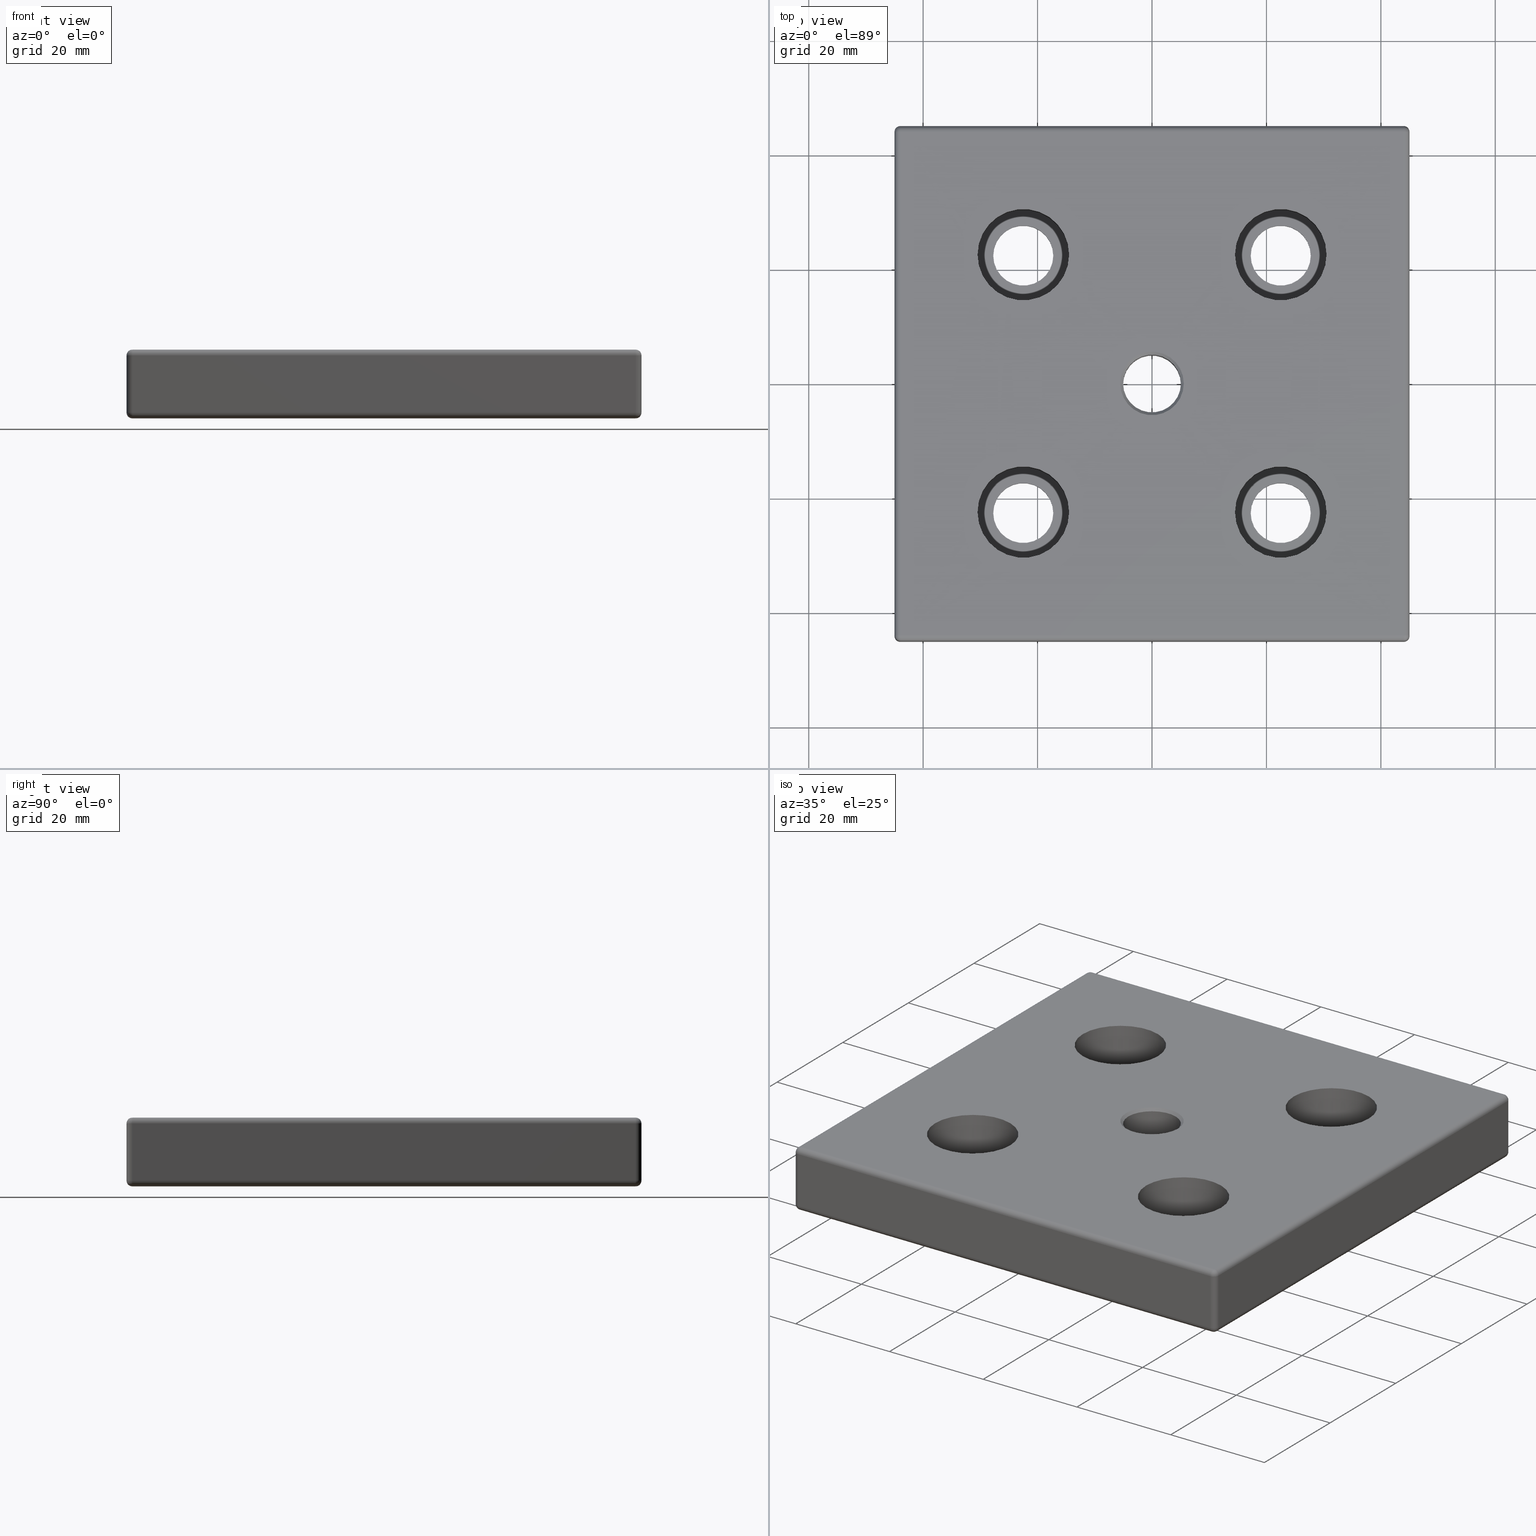
[diagram: canonical four-view strip — front | top / right | iso, engineering-drawing reading convention]
A machine part, canonical four-view strip (front | top / right | iso — engineering-drawing reading convention). The complete STEP part file that produces these views, byte-faithful:
ISO-10303-21;
HEADER;
/* Generated by software containing ST-Developer
 * from STEP Tools, Inc. (www.steptools.com) 
 */

FILE_DESCRIPTION(
/* description */ ('PIASTRA FISS. PIEDI M12 90X90'),
/* implementation_level */ '2;1');

FILE_NAME(
/* name */ 
'Q:\\Catalogo\\2_Accessori Dierre\\Per Download Web e catalogo cartace
o\\CATALOGO PIEDI E SOSTEGNI\\PAGINA 46\\DPSXX0001729.stp',
/* time_stamp */ '2018-11-05T17:49:38+01:00',
/* author */ ('fzagni'),
/* organization */ (''),
/* preprocessor_version */ 'ST-DEVELOPER v16.1',
/* originating_system */ 'Autodesk Inventor 2016',
/* authorisation */ '');

FILE_SCHEMA (('AUTOMOTIVE_DESIGN { 1 0 10303 214 3 1 1 }'));
ENDSEC;

DATA;
#10=MECHANICAL_DESIGN_GEOMETRIC_PRESENTATION_REPRESENTATION('',(#13),#1009);
#11=SHAPE_REPRESENTATION_RELATIONSHIP('SRR','None',#1018,#12);
#12=ADVANCED_BREP_SHAPE_REPRESENTATION('',(#14),#1008);
#13=STYLED_ITEM('',(#1027),#14);
#14=MANIFOLD_SOLID_BREP('Solido1',#569);
#15=SPHERICAL_SURFACE('',#608,0.999999999999996);
#16=SPHERICAL_SURFACE('',#612,0.999999999999996);
#17=SPHERICAL_SURFACE('',#616,0.999999999999996);
#18=SPHERICAL_SURFACE('',#620,0.999999999999996);
#19=SPHERICAL_SURFACE('',#624,1.);
#20=SPHERICAL_SURFACE('',#629,0.999999999999996);
#21=SPHERICAL_SURFACE('',#635,0.999999999999996);
#22=SPHERICAL_SURFACE('',#639,0.999999999999996);
#23=LINE('',#864,#47);
#24=LINE('',#866,#48);
#25=LINE('',#868,#49);
#26=LINE('',#869,#50);
#27=LINE('',#884,#51);
#28=LINE('',#886,#52);
#29=LINE('',#888,#53);
#30=LINE('',#889,#54);
#31=LINE('',#957,#55);
#32=LINE('',#965,#56);
#33=LINE('',#967,#57);
#34=LINE('',#968,#58);
#35=LINE('',#982,#59);
#36=LINE('',#984,#60);
#37=LINE('',#985,#61);
#38=LINE('',#987,#62);
#39=LINE('',#989,#63);
#40=LINE('',#991,#64);
#41=LINE('',#993,#65);
#42=LINE('',#994,#66);
#43=LINE('',#996,#67);
#44=LINE('',#998,#68);
#45=LINE('',#1000,#69);
#46=LINE('',#1001,#70);
#47=VECTOR('',#670,88.);
#48=VECTOR('',#671,88.);
#49=VECTOR('',#672,88.);
#50=VECTOR('',#673,88.);
#51=VECTOR('',#688,88.);
#52=VECTOR('',#689,88.);
#53=VECTOR('',#690,88.);
#54=VECTOR('',#691,88.);
#55=VECTOR('',#782,88.);
#56=VECTOR('',#793,88.);
#57=VECTOR('',#796,10.);
#58=VECTOR('',#797,10.);
#59=VECTOR('',#816,88.);
#60=VECTOR('',#819,10.);
#61=VECTOR('',#820,10.);
#62=VECTOR('',#823,88.);
#63=VECTOR('',#826,88.);
#64=VECTOR('',#829,88.);
#65=VECTOR('',#832,10.);
#66=VECTOR('',#833,10.);
#67=VECTOR('',#836,88.);
#68=VECTOR('',#839,88.);
#69=VECTOR('',#842,10.);
#70=VECTOR('',#843,10.);
#71=PLANE('',#576);
#72=PLANE('',#583);
#73=PLANE('',#588);
#74=PLANE('',#593);
#75=PLANE('',#598);
#76=PLANE('',#603);
#77=PLANE('',#652);
#78=PLANE('',#653);
#79=PLANE('',#654);
#80=PLANE('',#655);
#81=CYLINDRICAL_SURFACE('',#574,5.053);
#82=CYLINDRICAL_SURFACE('',#591,8.);
#83=CYLINDRICAL_SURFACE('',#592,5.25);
#84=CYLINDRICAL_SURFACE('',#596,8.);
#85=CYLINDRICAL_SURFACE('',#597,5.25);
#86=CYLINDRICAL_SURFACE('',#601,8.);
#87=CYLINDRICAL_SURFACE('',#602,5.25);
#88=CYLINDRICAL_SURFACE('',#606,8.);
#89=CYLINDRICAL_SURFACE('',#607,5.25);
#90=CYLINDRICAL_SURFACE('',#628,1.);
#91=CYLINDRICAL_SURFACE('',#633,1.);
#92=CYLINDRICAL_SURFACE('',#634,1.);
#93=CYLINDRICAL_SURFACE('',#643,1.);
#94=CYLINDRICAL_SURFACE('',#644,1.);
#95=CYLINDRICAL_SURFACE('',#645,1.);
#96=CYLINDRICAL_SURFACE('',#646,1.);
#97=CYLINDRICAL_SURFACE('',#647,1.);
#98=CYLINDRICAL_SURFACE('',#648,1.);
#99=CYLINDRICAL_SURFACE('',#649,1.);
#100=CYLINDRICAL_SURFACE('',#650,1.);
#101=CYLINDRICAL_SURFACE('',#651,1.);
#102=FACE_BOUND('',#169,.T.);
#103=FACE_BOUND('',#171,.T.);
#104=FACE_BOUND('',#173,.T.);
#105=FACE_BOUND('',#174,.T.);
#106=FACE_BOUND('',#175,.T.);
#107=FACE_BOUND('',#176,.T.);
#108=FACE_BOUND('',#177,.T.);
#109=FACE_BOUND('',#179,.T.);
#110=FACE_BOUND('',#181,.T.);
#111=FACE_BOUND('',#182,.T.);
#112=FACE_BOUND('',#183,.T.);
#113=FACE_BOUND('',#184,.T.);
#114=FACE_BOUND('',#185,.T.);
#115=FACE_BOUND('',#187,.T.);
#116=FACE_BOUND('',#189,.T.);
#117=FACE_BOUND('',#191,.T.);
#118=FACE_BOUND('',#193,.T.);
#119=FACE_BOUND('',#195,.T.);
#120=FACE_BOUND('',#197,.T.);
#121=FACE_BOUND('',#199,.T.);
#122=FACE_BOUND('',#201,.T.);
#123=FACE_BOUND('',#203,.T.);
#124=FACE_BOUND('',#205,.T.);
#125=FACE_BOUND('',#207,.T.);
#126=FACE_BOUND('',#209,.T.);
#127=FACE_OUTER_BOUND('',#168,.T.);
#128=FACE_OUTER_BOUND('',#170,.T.);
#129=FACE_OUTER_BOUND('',#172,.T.);
#130=FACE_OUTER_BOUND('',#178,.T.);
#131=FACE_OUTER_BOUND('',#180,.T.);
#132=FACE_OUTER_BOUND('',#186,.T.);
#133=FACE_OUTER_BOUND('',#188,.T.);
#134=FACE_OUTER_BOUND('',#190,.T.);
#135=FACE_OUTER_BOUND('',#192,.T.);
#136=FACE_OUTER_BOUND('',#194,.T.);
#137=FACE_OUTER_BOUND('',#196,.T.);
#138=FACE_OUTER_BOUND('',#198,.T.);
#139=FACE_OUTER_BOUND('',#200,.T.);
#140=FACE_OUTER_BOUND('',#202,.T.);
#141=FACE_OUTER_BOUND('',#204,.T.);
#142=FACE_OUTER_BOUND('',#206,.T.);
#143=FACE_OUTER_BOUND('',#208,.T.);
#144=FACE_OUTER_BOUND('',#210,.T.);
#145=FACE_OUTER_BOUND('',#211,.T.);
#146=FACE_OUTER_BOUND('',#212,.T.);
#147=FACE_OUTER_BOUND('',#213,.T.);
#148=FACE_OUTER_BOUND('',#214,.T.);
#149=FACE_OUTER_BOUND('',#215,.T.);
#150=FACE_OUTER_BOUND('',#216,.T.);
#151=FACE_OUTER_BOUND('',#217,.T.);
#152=FACE_OUTER_BOUND('',#218,.T.);
#153=FACE_OUTER_BOUND('',#219,.T.);
#154=FACE_OUTER_BOUND('',#220,.T.);
#155=FACE_OUTER_BOUND('',#221,.T.);
#156=FACE_OUTER_BOUND('',#222,.T.);
#157=FACE_OUTER_BOUND('',#223,.T.);
#158=FACE_OUTER_BOUND('',#224,.T.);
#159=FACE_OUTER_BOUND('',#225,.T.);
#160=FACE_OUTER_BOUND('',#226,.T.);
#161=FACE_OUTER_BOUND('',#227,.T.);
#162=FACE_OUTER_BOUND('',#228,.T.);
#163=FACE_OUTER_BOUND('',#229,.T.);
#164=FACE_OUTER_BOUND('',#230,.T.);
#165=FACE_OUTER_BOUND('',#231,.T.);
#166=FACE_OUTER_BOUND('',#232,.T.);
#167=FACE_OUTER_BOUND('',#233,.T.);
#168=EDGE_LOOP('',(#390));
#169=EDGE_LOOP('',(#391));
#170=EDGE_LOOP('',(#392));
#171=EDGE_LOOP('',(#393));
#172=EDGE_LOOP('',(#394,#395,#396,#397));
#173=EDGE_LOOP('',(#398));
#174=EDGE_LOOP('',(#399));
#175=EDGE_LOOP('',(#400));
#176=EDGE_LOOP('',(#401));
#177=EDGE_LOOP('',(#402));
#178=EDGE_LOOP('',(#403));
#179=EDGE_LOOP('',(#404));
#180=EDGE_LOOP('',(#405,#406,#407,#408));
#181=EDGE_LOOP('',(#409));
#182=EDGE_LOOP('',(#410));
#183=EDGE_LOOP('',(#411));
#184=EDGE_LOOP('',(#412));
#185=EDGE_LOOP('',(#413));
#186=EDGE_LOOP('',(#414));
#187=EDGE_LOOP('',(#415));
#188=EDGE_LOOP('',(#416));
#189=EDGE_LOOP('',(#417));
#190=EDGE_LOOP('',(#418));
#191=EDGE_LOOP('',(#419));
#192=EDGE_LOOP('',(#420));
#193=EDGE_LOOP('',(#421));
#194=EDGE_LOOP('',(#422));
#195=EDGE_LOOP('',(#423));
#196=EDGE_LOOP('',(#424));
#197=EDGE_LOOP('',(#425));
#198=EDGE_LOOP('',(#426));
#199=EDGE_LOOP('',(#427));
#200=EDGE_LOOP('',(#428));
#201=EDGE_LOOP('',(#429));
#202=EDGE_LOOP('',(#430));
#203=EDGE_LOOP('',(#431));
#204=EDGE_LOOP('',(#432));
#205=EDGE_LOOP('',(#433));
#206=EDGE_LOOP('',(#434));
#207=EDGE_LOOP('',(#435));
#208=EDGE_LOOP('',(#436));
#209=EDGE_LOOP('',(#437));
#210=EDGE_LOOP('',(#438,#439,#440));
#211=EDGE_LOOP('',(#441,#442,#443));
#212=EDGE_LOOP('',(#444,#445,#446));
#213=EDGE_LOOP('',(#447,#448,#449));
#214=EDGE_LOOP('',(#450,#451,#452));
#215=EDGE_LOOP('',(#453,#454,#455,#456));
#216=EDGE_LOOP('',(#457,#458,#459));
#217=EDGE_LOOP('',(#460,#461,#462,#463));
#218=EDGE_LOOP('',(#464,#465,#466,#467));
#219=EDGE_LOOP('',(#468,#469,#470));
#220=EDGE_LOOP('',(#471,#472,#473));
#221=EDGE_LOOP('',(#474,#475,#476,#477));
#222=EDGE_LOOP('',(#478,#479,#480,#481));
#223=EDGE_LOOP('',(#482,#483,#484,#485));
#224=EDGE_LOOP('',(#486,#487,#488,#489));
#225=EDGE_LOOP('',(#490,#491,#492,#493));
#226=EDGE_LOOP('',(#494,#495,#496,#497));
#227=EDGE_LOOP('',(#498,#499,#500,#501));
#228=EDGE_LOOP('',(#502,#503,#504,#505));
#229=EDGE_LOOP('',(#506,#507,#508,#509));
#230=EDGE_LOOP('',(#510,#511,#512,#513));
#231=EDGE_LOOP('',(#514,#515,#516,#517));
#232=EDGE_LOOP('',(#518,#519,#520,#521));
#233=EDGE_LOOP('',(#522,#523,#524,#525));
#234=CIRCLE('',#572,5.053);
#235=CIRCLE('',#573,5.553);
#236=CIRCLE('',#575,5.053);
#237=CIRCLE('',#577,5.25);
#238=CIRCLE('',#578,5.25);
#239=CIRCLE('',#579,5.25);
#240=CIRCLE('',#580,5.25);
#241=CIRCLE('',#582,5.553);
#242=CIRCLE('',#584,8.);
#243=CIRCLE('',#585,8.);
#244=CIRCLE('',#586,8.);
#245=CIRCLE('',#587,8.);
#246=CIRCLE('',#589,8.);
#247=CIRCLE('',#590,5.25);
#248=CIRCLE('',#594,8.);
#249=CIRCLE('',#595,5.25);
#250=CIRCLE('',#599,8.);
#251=CIRCLE('',#600,5.25);
#252=CIRCLE('',#604,8.);
#253=CIRCLE('',#605,5.25);
#254=CIRCLE('',#609,0.999999999999996);
#255=CIRCLE('',#610,0.999999999999996);
#256=CIRCLE('',#611,1.);
#257=CIRCLE('',#613,1.);
#258=CIRCLE('',#614,0.999999999999996);
#259=CIRCLE('',#615,0.999999999999996);
#260=CIRCLE('',#617,0.999999999999996);
#261=CIRCLE('',#618,0.999999999999996);
#262=CIRCLE('',#619,1.);
#263=CIRCLE('',#621,0.999999999999996);
#264=CIRCLE('',#622,0.999999999999996);
#265=CIRCLE('',#623,1.);
#266=CIRCLE('',#625,0.999999999999996);
#267=CIRCLE('',#626,1.);
#268=CIRCLE('',#627,0.999999999999996);
#269=CIRCLE('',#630,1.);
#270=CIRCLE('',#631,0.999999999999996);
#271=CIRCLE('',#632,0.999999999999996);
#272=CIRCLE('',#636,0.999999999999996);
#273=CIRCLE('',#637,0.999999999999996);
#274=CIRCLE('',#638,1.);
#275=CIRCLE('',#640,1.);
#276=CIRCLE('',#641,0.999999999999996);
#277=CIRCLE('',#642,0.999999999999996);
#278=VERTEX_POINT('',#854);
#279=VERTEX_POINT('',#856);
#280=VERTEX_POINT('',#859);
#281=VERTEX_POINT('',#862);
#282=VERTEX_POINT('',#863);
#283=VERTEX_POINT('',#865);
#284=VERTEX_POINT('',#867);
#285=VERTEX_POINT('',#870);
#286=VERTEX_POINT('',#872);
#287=VERTEX_POINT('',#874);
#288=VERTEX_POINT('',#876);
#289=VERTEX_POINT('',#879);
#290=VERTEX_POINT('',#882);
#291=VERTEX_POINT('',#883);
#292=VERTEX_POINT('',#885);
#293=VERTEX_POINT('',#887);
#294=VERTEX_POINT('',#890);
#295=VERTEX_POINT('',#892);
#296=VERTEX_POINT('',#894);
#297=VERTEX_POINT('',#896);
#298=VERTEX_POINT('',#899);
#299=VERTEX_POINT('',#901);
#300=VERTEX_POINT('',#906);
#301=VERTEX_POINT('',#908);
#302=VERTEX_POINT('',#913);
#303=VERTEX_POINT('',#915);
#304=VERTEX_POINT('',#920);
#305=VERTEX_POINT('',#922);
#306=VERTEX_POINT('',#927);
#307=VERTEX_POINT('',#929);
#308=VERTEX_POINT('',#933);
#309=VERTEX_POINT('',#935);
#310=VERTEX_POINT('',#939);
#311=VERTEX_POINT('',#941);
#312=VERTEX_POINT('',#945);
#313=VERTEX_POINT('',#947);
#314=VERTEX_POINT('',#951);
#315=VERTEX_POINT('',#952);
#316=VERTEX_POINT('',#959);
#317=VERTEX_POINT('',#961);
#318=VERTEX_POINT('',#970);
#319=VERTEX_POINT('',#972);
#320=VERTEX_POINT('',#976);
#321=VERTEX_POINT('',#978);
#322=EDGE_CURVE('',#278,#278,#234,.T.);
#323=EDGE_CURVE('',#279,#279,#235,.T.);
#324=EDGE_CURVE('',#280,#280,#236,.T.);
#325=EDGE_CURVE('',#281,#282,#23,.T.);
#326=EDGE_CURVE('',#283,#281,#24,.T.);
#327=EDGE_CURVE('',#284,#283,#25,.T.);
#328=EDGE_CURVE('',#282,#284,#26,.T.);
#329=EDGE_CURVE('',#285,#285,#237,.T.);
#330=EDGE_CURVE('',#286,#286,#238,.T.);
#331=EDGE_CURVE('',#287,#287,#239,.T.);
#332=EDGE_CURVE('',#288,#288,#240,.T.);
#333=EDGE_CURVE('',#289,#289,#241,.T.);
#334=EDGE_CURVE('',#290,#291,#27,.T.);
#335=EDGE_CURVE('',#292,#290,#28,.T.);
#336=EDGE_CURVE('',#293,#292,#29,.T.);
#337=EDGE_CURVE('',#291,#293,#30,.T.);
#338=EDGE_CURVE('',#294,#294,#242,.T.);
#339=EDGE_CURVE('',#295,#295,#243,.T.);
#340=EDGE_CURVE('',#296,#296,#244,.T.);
#341=EDGE_CURVE('',#297,#297,#245,.T.);
#342=EDGE_CURVE('',#298,#298,#246,.T.);
#343=EDGE_CURVE('',#299,#299,#247,.T.);
#344=EDGE_CURVE('',#300,#300,#248,.T.);
#345=EDGE_CURVE('',#301,#301,#249,.T.);
#346=EDGE_CURVE('',#302,#302,#250,.T.);
#347=EDGE_CURVE('',#303,#303,#251,.T.);
#348=EDGE_CURVE('',#304,#304,#252,.T.);
#349=EDGE_CURVE('',#305,#305,#253,.T.);
#350=EDGE_CURVE('',#306,#292,#254,.F.);
#351=EDGE_CURVE('',#307,#306,#255,.F.);
#352=EDGE_CURVE('',#292,#307,#256,.F.);
#353=EDGE_CURVE('',#281,#308,#257,.F.);
#354=EDGE_CURVE('',#309,#281,#258,.F.);
#355=EDGE_CURVE('',#308,#309,#259,.F.);
#356=EDGE_CURVE('',#310,#293,#260,.F.);
#357=EDGE_CURVE('',#311,#310,#261,.F.);
#358=EDGE_CURVE('',#293,#311,#262,.F.);
#359=EDGE_CURVE('',#312,#290,#263,.F.);
#360=EDGE_CURVE('',#313,#312,#264,.F.);
#361=EDGE_CURVE('',#290,#313,#265,.F.);
#362=EDGE_CURVE('',#314,#315,#266,.F.);
#363=EDGE_CURVE('',#282,#314,#267,.F.);
#364=EDGE_CURVE('',#315,#282,#268,.F.);
#365=EDGE_CURVE('',#314,#309,#31,.T.);
#366=EDGE_CURVE('',#283,#316,#269,.F.);
#367=EDGE_CURVE('',#317,#283,#270,.F.);
#368=EDGE_CURVE('',#316,#317,#271,.F.);
#369=EDGE_CURVE('',#308,#317,#32,.T.);
#370=EDGE_CURVE('',#312,#316,#33,.T.);
#371=EDGE_CURVE('',#317,#313,#34,.T.);
#372=EDGE_CURVE('',#318,#291,#272,.F.);
#373=EDGE_CURVE('',#319,#318,#273,.F.);
#374=EDGE_CURVE('',#291,#319,#274,.F.);
#375=EDGE_CURVE('',#284,#320,#275,.F.);
#376=EDGE_CURVE('',#321,#284,#276,.F.);
#377=EDGE_CURVE('',#320,#321,#277,.F.);
#378=EDGE_CURVE('',#316,#321,#35,.T.);
#379=EDGE_CURVE('',#318,#320,#36,.T.);
#380=EDGE_CURVE('',#321,#319,#37,.T.);
#381=EDGE_CURVE('',#320,#315,#38,.T.);
#382=EDGE_CURVE('',#319,#312,#39,.T.);
#383=EDGE_CURVE('',#311,#318,#40,.T.);
#384=EDGE_CURVE('',#310,#314,#41,.T.);
#385=EDGE_CURVE('',#315,#311,#42,.T.);
#386=EDGE_CURVE('',#313,#306,#43,.T.);
#387=EDGE_CURVE('',#307,#310,#44,.T.);
#388=EDGE_CURVE('',#306,#308,#45,.T.);
#389=EDGE_CURVE('',#309,#307,#46,.T.);
#390=ORIENTED_EDGE('',*,*,#322,.T.);
#391=ORIENTED_EDGE('',*,*,#323,.T.);
#392=ORIENTED_EDGE('',*,*,#324,.F.);
#393=ORIENTED_EDGE('',*,*,#322,.F.);
#394=ORIENTED_EDGE('',*,*,#325,.F.);
#395=ORIENTED_EDGE('',*,*,#326,.F.);
#396=ORIENTED_EDGE('',*,*,#327,.F.);
#397=ORIENTED_EDGE('',*,*,#328,.F.);
#398=ORIENTED_EDGE('',*,*,#329,.T.);
#399=ORIENTED_EDGE('',*,*,#330,.T.);
#400=ORIENTED_EDGE('',*,*,#331,.T.);
#401=ORIENTED_EDGE('',*,*,#332,.T.);
#402=ORIENTED_EDGE('',*,*,#323,.F.);
#403=ORIENTED_EDGE('',*,*,#324,.T.);
#404=ORIENTED_EDGE('',*,*,#333,.T.);
#405=ORIENTED_EDGE('',*,*,#334,.F.);
#406=ORIENTED_EDGE('',*,*,#335,.F.);
#407=ORIENTED_EDGE('',*,*,#336,.F.);
#408=ORIENTED_EDGE('',*,*,#337,.F.);
#409=ORIENTED_EDGE('',*,*,#338,.T.);
#410=ORIENTED_EDGE('',*,*,#339,.T.);
#411=ORIENTED_EDGE('',*,*,#340,.T.);
#412=ORIENTED_EDGE('',*,*,#341,.T.);
#413=ORIENTED_EDGE('',*,*,#333,.F.);
#414=ORIENTED_EDGE('',*,*,#342,.T.);
#415=ORIENTED_EDGE('',*,*,#343,.F.);
#416=ORIENTED_EDGE('',*,*,#341,.F.);
#417=ORIENTED_EDGE('',*,*,#342,.F.);
#418=ORIENTED_EDGE('',*,*,#332,.F.);
#419=ORIENTED_EDGE('',*,*,#343,.T.);
#420=ORIENTED_EDGE('',*,*,#344,.T.);
#421=ORIENTED_EDGE('',*,*,#345,.F.);
#422=ORIENTED_EDGE('',*,*,#340,.F.);
#423=ORIENTED_EDGE('',*,*,#344,.F.);
#424=ORIENTED_EDGE('',*,*,#331,.F.);
#425=ORIENTED_EDGE('',*,*,#345,.T.);
#426=ORIENTED_EDGE('',*,*,#346,.T.);
#427=ORIENTED_EDGE('',*,*,#347,.F.);
#428=ORIENTED_EDGE('',*,*,#339,.F.);
#429=ORIENTED_EDGE('',*,*,#346,.F.);
#430=ORIENTED_EDGE('',*,*,#330,.F.);
#431=ORIENTED_EDGE('',*,*,#347,.T.);
#432=ORIENTED_EDGE('',*,*,#348,.T.);
#433=ORIENTED_EDGE('',*,*,#349,.F.);
#434=ORIENTED_EDGE('',*,*,#338,.F.);
#435=ORIENTED_EDGE('',*,*,#348,.F.);
#436=ORIENTED_EDGE('',*,*,#329,.F.);
#437=ORIENTED_EDGE('',*,*,#349,.T.);
#438=ORIENTED_EDGE('',*,*,#350,.F.);
#439=ORIENTED_EDGE('',*,*,#351,.F.);
#440=ORIENTED_EDGE('',*,*,#352,.F.);
#441=ORIENTED_EDGE('',*,*,#353,.F.);
#442=ORIENTED_EDGE('',*,*,#354,.F.);
#443=ORIENTED_EDGE('',*,*,#355,.F.);
#444=ORIENTED_EDGE('',*,*,#356,.F.);
#445=ORIENTED_EDGE('',*,*,#357,.F.);
#446=ORIENTED_EDGE('',*,*,#358,.F.);
#447=ORIENTED_EDGE('',*,*,#359,.F.);
#448=ORIENTED_EDGE('',*,*,#360,.F.);
#449=ORIENTED_EDGE('',*,*,#361,.F.);
#450=ORIENTED_EDGE('',*,*,#362,.F.);
#451=ORIENTED_EDGE('',*,*,#363,.F.);
#452=ORIENTED_EDGE('',*,*,#364,.F.);
#453=ORIENTED_EDGE('',*,*,#354,.T.);
#454=ORIENTED_EDGE('',*,*,#325,.T.);
#455=ORIENTED_EDGE('',*,*,#363,.T.);
#456=ORIENTED_EDGE('',*,*,#365,.T.);
#457=ORIENTED_EDGE('',*,*,#366,.F.);
#458=ORIENTED_EDGE('',*,*,#367,.F.);
#459=ORIENTED_EDGE('',*,*,#368,.F.);
#460=ORIENTED_EDGE('',*,*,#367,.T.);
#461=ORIENTED_EDGE('',*,*,#326,.T.);
#462=ORIENTED_EDGE('',*,*,#353,.T.);
#463=ORIENTED_EDGE('',*,*,#369,.T.);
#464=ORIENTED_EDGE('',*,*,#360,.T.);
#465=ORIENTED_EDGE('',*,*,#370,.T.);
#466=ORIENTED_EDGE('',*,*,#368,.T.);
#467=ORIENTED_EDGE('',*,*,#371,.T.);
#468=ORIENTED_EDGE('',*,*,#372,.F.);
#469=ORIENTED_EDGE('',*,*,#373,.F.);
#470=ORIENTED_EDGE('',*,*,#374,.F.);
#471=ORIENTED_EDGE('',*,*,#375,.F.);
#472=ORIENTED_EDGE('',*,*,#376,.F.);
#473=ORIENTED_EDGE('',*,*,#377,.F.);
#474=ORIENTED_EDGE('',*,*,#376,.T.);
#475=ORIENTED_EDGE('',*,*,#327,.T.);
#476=ORIENTED_EDGE('',*,*,#366,.T.);
#477=ORIENTED_EDGE('',*,*,#378,.T.);
#478=ORIENTED_EDGE('',*,*,#373,.T.);
#479=ORIENTED_EDGE('',*,*,#379,.T.);
#480=ORIENTED_EDGE('',*,*,#377,.T.);
#481=ORIENTED_EDGE('',*,*,#380,.T.);
#482=ORIENTED_EDGE('',*,*,#364,.T.);
#483=ORIENTED_EDGE('',*,*,#328,.T.);
#484=ORIENTED_EDGE('',*,*,#375,.T.);
#485=ORIENTED_EDGE('',*,*,#381,.T.);
#486=ORIENTED_EDGE('',*,*,#359,.T.);
#487=ORIENTED_EDGE('',*,*,#334,.T.);
#488=ORIENTED_EDGE('',*,*,#374,.T.);
#489=ORIENTED_EDGE('',*,*,#382,.T.);
#490=ORIENTED_EDGE('',*,*,#372,.T.);
#491=ORIENTED_EDGE('',*,*,#337,.T.);
#492=ORIENTED_EDGE('',*,*,#358,.T.);
#493=ORIENTED_EDGE('',*,*,#383,.T.);
#494=ORIENTED_EDGE('',*,*,#357,.T.);
#495=ORIENTED_EDGE('',*,*,#384,.T.);
#496=ORIENTED_EDGE('',*,*,#362,.T.);
#497=ORIENTED_EDGE('',*,*,#385,.T.);
#498=ORIENTED_EDGE('',*,*,#350,.T.);
#499=ORIENTED_EDGE('',*,*,#335,.T.);
#500=ORIENTED_EDGE('',*,*,#361,.T.);
#501=ORIENTED_EDGE('',*,*,#386,.T.);
#502=ORIENTED_EDGE('',*,*,#356,.T.);
#503=ORIENTED_EDGE('',*,*,#336,.T.);
#504=ORIENTED_EDGE('',*,*,#352,.T.);
#505=ORIENTED_EDGE('',*,*,#387,.T.);
#506=ORIENTED_EDGE('',*,*,#351,.T.);
#507=ORIENTED_EDGE('',*,*,#388,.T.);
#508=ORIENTED_EDGE('',*,*,#355,.T.);
#509=ORIENTED_EDGE('',*,*,#389,.T.);
#510=ORIENTED_EDGE('',*,*,#365,.F.);
#511=ORIENTED_EDGE('',*,*,#384,.F.);
#512=ORIENTED_EDGE('',*,*,#387,.F.);
#513=ORIENTED_EDGE('',*,*,#389,.F.);
#514=ORIENTED_EDGE('',*,*,#369,.F.);
#515=ORIENTED_EDGE('',*,*,#388,.F.);
#516=ORIENTED_EDGE('',*,*,#386,.F.);
#517=ORIENTED_EDGE('',*,*,#371,.F.);
#518=ORIENTED_EDGE('',*,*,#370,.F.);
#519=ORIENTED_EDGE('',*,*,#382,.F.);
#520=ORIENTED_EDGE('',*,*,#380,.F.);
#521=ORIENTED_EDGE('',*,*,#378,.F.);
#522=ORIENTED_EDGE('',*,*,#379,.F.);
#523=ORIENTED_EDGE('',*,*,#383,.F.);
#524=ORIENTED_EDGE('',*,*,#385,.F.);
#525=ORIENTED_EDGE('',*,*,#381,.F.);
#526=CONICAL_SURFACE('',#571,5.303,44.9999999999996);
#527=CONICAL_SURFACE('',#581,5.303,44.9999999999991);
#528=ADVANCED_FACE('',(#127,#102),#526,.F.);
#529=ADVANCED_FACE('',(#128,#103),#81,.F.);
#530=ADVANCED_FACE('',(#129,#104,#105,#106,#107,#108),#71,.F.);
#531=ADVANCED_FACE('',(#130,#109),#527,.F.);
#532=ADVANCED_FACE('',(#131,#110,#111,#112,#113,#114),#72,.T.);
#533=ADVANCED_FACE('',(#132,#115),#73,.T.);
#534=ADVANCED_FACE('',(#133,#116),#82,.F.);
#535=ADVANCED_FACE('',(#134,#117),#83,.F.);
#536=ADVANCED_FACE('',(#135,#118),#74,.T.);
#537=ADVANCED_FACE('',(#136,#119),#84,.F.);
#538=ADVANCED_FACE('',(#137,#120),#85,.F.);
#539=ADVANCED_FACE('',(#138,#121),#75,.T.);
#540=ADVANCED_FACE('',(#139,#122),#86,.F.);
#541=ADVANCED_FACE('',(#140,#123),#87,.F.);
#542=ADVANCED_FACE('',(#141,#124),#76,.T.);
#543=ADVANCED_FACE('',(#142,#125),#88,.F.);
#544=ADVANCED_FACE('',(#143,#126),#89,.F.);
#545=ADVANCED_FACE('',(#144),#15,.T.);
#546=ADVANCED_FACE('',(#145),#16,.T.);
#547=ADVANCED_FACE('',(#146),#17,.T.);
#548=ADVANCED_FACE('',(#147),#18,.T.);
#549=ADVANCED_FACE('',(#148),#19,.T.);
#550=ADVANCED_FACE('',(#149),#90,.T.);
#551=ADVANCED_FACE('',(#150),#20,.T.);
#552=ADVANCED_FACE('',(#151),#91,.T.);
#553=ADVANCED_FACE('',(#152),#92,.T.);
#554=ADVANCED_FACE('',(#153),#21,.T.);
#555=ADVANCED_FACE('',(#154),#22,.T.);
#556=ADVANCED_FACE('',(#155),#93,.T.);
#557=ADVANCED_FACE('',(#156),#94,.T.);
#558=ADVANCED_FACE('',(#157),#95,.T.);
#559=ADVANCED_FACE('',(#158),#96,.T.);
#560=ADVANCED_FACE('',(#159),#97,.T.);
#561=ADVANCED_FACE('',(#160),#98,.T.);
#562=ADVANCED_FACE('',(#161),#99,.T.);
#563=ADVANCED_FACE('',(#162),#100,.T.);
#564=ADVANCED_FACE('',(#163),#101,.T.);
#565=ADVANCED_FACE('',(#164),#77,.T.);
#566=ADVANCED_FACE('',(#165),#78,.T.);
#567=ADVANCED_FACE('',(#166),#79,.T.);
#568=ADVANCED_FACE('',(#167),#80,.T.);
#569=CLOSED_SHELL('',(#528,#529,#530,#531,#532,#533,#534,#535,#536,#537,
#538,#539,#540,#541,#542,#543,#544,#545,#546,#547,#548,#549,#550,#551,#552,
#553,#554,#555,#556,#557,#558,#559,#560,#561,#562,#563,#564,#565,#566,#567,
#568));
#570=AXIS2_PLACEMENT_3D('placement',#852,#656,#657);
#571=AXIS2_PLACEMENT_3D('',#853,#658,#659);
#572=AXIS2_PLACEMENT_3D('',#855,#660,#661);
#573=AXIS2_PLACEMENT_3D('',#857,#662,#663);
#574=AXIS2_PLACEMENT_3D('',#858,#664,#665);
#575=AXIS2_PLACEMENT_3D('',#860,#666,#667);
#576=AXIS2_PLACEMENT_3D('',#861,#668,#669);
#577=AXIS2_PLACEMENT_3D('',#871,#674,#675);
#578=AXIS2_PLACEMENT_3D('',#873,#676,#677);
#579=AXIS2_PLACEMENT_3D('',#875,#678,#679);
#580=AXIS2_PLACEMENT_3D('',#877,#680,#681);
#581=AXIS2_PLACEMENT_3D('',#878,#682,#683);
#582=AXIS2_PLACEMENT_3D('',#880,#684,#685);
#583=AXIS2_PLACEMENT_3D('',#881,#686,#687);
#584=AXIS2_PLACEMENT_3D('',#891,#692,#693);
#585=AXIS2_PLACEMENT_3D('',#893,#694,#695);
#586=AXIS2_PLACEMENT_3D('',#895,#696,#697);
#587=AXIS2_PLACEMENT_3D('',#897,#698,#699);
#588=AXIS2_PLACEMENT_3D('',#898,#700,#701);
#589=AXIS2_PLACEMENT_3D('',#900,#702,#703);
#590=AXIS2_PLACEMENT_3D('',#902,#704,#705);
#591=AXIS2_PLACEMENT_3D('',#903,#706,#707);
#592=AXIS2_PLACEMENT_3D('',#904,#708,#709);
#593=AXIS2_PLACEMENT_3D('',#905,#710,#711);
#594=AXIS2_PLACEMENT_3D('',#907,#712,#713);
#595=AXIS2_PLACEMENT_3D('',#909,#714,#715);
#596=AXIS2_PLACEMENT_3D('',#910,#716,#717);
#597=AXIS2_PLACEMENT_3D('',#911,#718,#719);
#598=AXIS2_PLACEMENT_3D('',#912,#720,#721);
#599=AXIS2_PLACEMENT_3D('',#914,#722,#723);
#600=AXIS2_PLACEMENT_3D('',#916,#724,#725);
#601=AXIS2_PLACEMENT_3D('',#917,#726,#727);
#602=AXIS2_PLACEMENT_3D('',#918,#728,#729);
#603=AXIS2_PLACEMENT_3D('',#919,#730,#731);
#604=AXIS2_PLACEMENT_3D('',#921,#732,#733);
#605=AXIS2_PLACEMENT_3D('',#923,#734,#735);
#606=AXIS2_PLACEMENT_3D('',#924,#736,#737);
#607=AXIS2_PLACEMENT_3D('',#925,#738,#739);
#608=AXIS2_PLACEMENT_3D('',#926,#740,#741);
#609=AXIS2_PLACEMENT_3D('',#928,#742,#743);
#610=AXIS2_PLACEMENT_3D('',#930,#744,#745);
#611=AXIS2_PLACEMENT_3D('',#931,#746,#747);
#612=AXIS2_PLACEMENT_3D('',#932,#748,#749);
#613=AXIS2_PLACEMENT_3D('',#934,#750,#751);
#614=AXIS2_PLACEMENT_3D('',#936,#752,#753);
#615=AXIS2_PLACEMENT_3D('',#937,#754,#755);
#616=AXIS2_PLACEMENT_3D('',#938,#756,#757);
#617=AXIS2_PLACEMENT_3D('',#940,#758,#759);
#618=AXIS2_PLACEMENT_3D('',#942,#760,#761);
#619=AXIS2_PLACEMENT_3D('',#943,#762,#763);
#620=AXIS2_PLACEMENT_3D('',#944,#764,#765);
#621=AXIS2_PLACEMENT_3D('',#946,#766,#767);
#622=AXIS2_PLACEMENT_3D('',#948,#768,#769);
#623=AXIS2_PLACEMENT_3D('',#949,#770,#771);
#624=AXIS2_PLACEMENT_3D('',#950,#772,#773);
#625=AXIS2_PLACEMENT_3D('',#953,#774,#775);
#626=AXIS2_PLACEMENT_3D('',#954,#776,#777);
#627=AXIS2_PLACEMENT_3D('',#955,#778,#779);
#628=AXIS2_PLACEMENT_3D('',#956,#780,#781);
#629=AXIS2_PLACEMENT_3D('',#958,#783,#784);
#630=AXIS2_PLACEMENT_3D('',#960,#785,#786);
#631=AXIS2_PLACEMENT_3D('',#962,#787,#788);
#632=AXIS2_PLACEMENT_3D('',#963,#789,#790);
#633=AXIS2_PLACEMENT_3D('',#964,#791,#792);
#634=AXIS2_PLACEMENT_3D('',#966,#794,#795);
#635=AXIS2_PLACEMENT_3D('',#969,#798,#799);
#636=AXIS2_PLACEMENT_3D('',#971,#800,#801);
#637=AXIS2_PLACEMENT_3D('',#973,#802,#803);
#638=AXIS2_PLACEMENT_3D('',#974,#804,#805);
#639=AXIS2_PLACEMENT_3D('',#975,#806,#807);
#640=AXIS2_PLACEMENT_3D('',#977,#808,#809);
#641=AXIS2_PLACEMENT_3D('',#979,#810,#811);
#642=AXIS2_PLACEMENT_3D('',#980,#812,#813);
#643=AXIS2_PLACEMENT_3D('',#981,#814,#815);
#644=AXIS2_PLACEMENT_3D('',#983,#817,#818);
#645=AXIS2_PLACEMENT_3D('',#986,#821,#822);
#646=AXIS2_PLACEMENT_3D('',#988,#824,#825);
#647=AXIS2_PLACEMENT_3D('',#990,#827,#828);
#648=AXIS2_PLACEMENT_3D('',#992,#830,#831);
#649=AXIS2_PLACEMENT_3D('',#995,#834,#835);
#650=AXIS2_PLACEMENT_3D('',#997,#837,#838);
#651=AXIS2_PLACEMENT_3D('',#999,#840,#841);
#652=AXIS2_PLACEMENT_3D('',#1002,#844,#845);
#653=AXIS2_PLACEMENT_3D('',#1003,#846,#847);
#654=AXIS2_PLACEMENT_3D('',#1004,#848,#849);
#655=AXIS2_PLACEMENT_3D('',#1005,#850,#851);
#656=DIRECTION('axis',(0.,0.,1.));
#657=DIRECTION('refdir',(1.,0.,0.));
#658=DIRECTION('center_axis',(0.,0.,-1.));
#659=DIRECTION('ref_axis',(1.,0.,0.));
#660=DIRECTION('center_axis',(0.,0.,1.));
#661=DIRECTION('ref_axis',(1.,0.,0.));
#662=DIRECTION('center_axis',(0.,0.,-1.));
#663=DIRECTION('ref_axis',(1.,0.,0.));
#664=DIRECTION('center_axis',(0.,0.,1.));
#665=DIRECTION('ref_axis',(1.,0.,0.));
#666=DIRECTION('center_axis',(0.,0.,-1.));
#667=DIRECTION('ref_axis',(-1.,0.,0.));
#668=DIRECTION('center_axis',(0.,0.,1.));
#669=DIRECTION('ref_axis',(1.,0.,0.));
#670=DIRECTION('',(1.,0.,0.));
#671=DIRECTION('',(0.,-1.,0.));
#672=DIRECTION('',(-1.,0.,0.));
#673=DIRECTION('',(0.,1.,0.));
#674=DIRECTION('center_axis',(0.,0.,1.));
#675=DIRECTION('ref_axis',(1.,0.,0.));
#676=DIRECTION('center_axis',(0.,0.,1.));
#677=DIRECTION('ref_axis',(1.,0.,0.));
#678=DIRECTION('center_axis',(0.,0.,1.));
#679=DIRECTION('ref_axis',(1.,0.,0.));
#680=DIRECTION('center_axis',(0.,0.,1.));
#681=DIRECTION('ref_axis',(1.,0.,0.));
#682=DIRECTION('center_axis',(0.,0.,1.));
#683=DIRECTION('ref_axis',(-1.,0.,0.));
#684=DIRECTION('center_axis',(0.,0.,1.));
#685=DIRECTION('ref_axis',(-1.,0.,0.));
#686=DIRECTION('center_axis',(0.,0.,1.));
#687=DIRECTION('ref_axis',(1.,0.,0.));
#688=DIRECTION('',(1.,0.,0.));
#689=DIRECTION('',(0.,1.,0.));
#690=DIRECTION('',(-1.,0.,0.));
#691=DIRECTION('',(0.,-1.,0.));
#692=DIRECTION('center_axis',(0.,0.,-1.));
#693=DIRECTION('ref_axis',(1.,0.,0.));
#694=DIRECTION('center_axis',(0.,0.,-1.));
#695=DIRECTION('ref_axis',(1.,0.,0.));
#696=DIRECTION('center_axis',(0.,0.,-1.));
#697=DIRECTION('ref_axis',(1.,0.,0.));
#698=DIRECTION('center_axis',(0.,0.,-1.));
#699=DIRECTION('ref_axis',(1.,0.,0.));
#700=DIRECTION('center_axis',(0.,0.,1.));
#701=DIRECTION('ref_axis',(1.,0.,0.));
#702=DIRECTION('center_axis',(0.,0.,1.));
#703=DIRECTION('ref_axis',(1.,0.,0.));
#704=DIRECTION('center_axis',(0.,0.,1.));
#705=DIRECTION('ref_axis',(1.,0.,0.));
#706=DIRECTION('center_axis',(0.,0.,1.));
#707=DIRECTION('ref_axis',(1.,0.,0.));
#708=DIRECTION('center_axis',(0.,0.,1.));
#709=DIRECTION('ref_axis',(1.,0.,0.));
#710=DIRECTION('center_axis',(0.,0.,1.));
#711=DIRECTION('ref_axis',(1.,0.,0.));
#712=DIRECTION('center_axis',(0.,0.,1.));
#713=DIRECTION('ref_axis',(1.,0.,0.));
#714=DIRECTION('center_axis',(0.,0.,1.));
#715=DIRECTION('ref_axis',(1.,0.,0.));
#716=DIRECTION('center_axis',(0.,0.,1.));
#717=DIRECTION('ref_axis',(1.,0.,0.));
#718=DIRECTION('center_axis',(0.,0.,1.));
#719=DIRECTION('ref_axis',(1.,0.,0.));
#720=DIRECTION('center_axis',(0.,0.,1.));
#721=DIRECTION('ref_axis',(1.,0.,0.));
#722=DIRECTION('center_axis',(0.,0.,1.));
#723=DIRECTION('ref_axis',(1.,0.,0.));
#724=DIRECTION('center_axis',(0.,0.,1.));
#725=DIRECTION('ref_axis',(1.,0.,0.));
#726=DIRECTION('center_axis',(0.,0.,1.));
#727=DIRECTION('ref_axis',(1.,0.,0.));
#728=DIRECTION('center_axis',(0.,0.,1.));
#729=DIRECTION('ref_axis',(1.,0.,0.));
#730=DIRECTION('center_axis',(0.,0.,1.));
#731=DIRECTION('ref_axis',(1.,0.,0.));
#732=DIRECTION('center_axis',(0.,0.,1.));
#733=DIRECTION('ref_axis',(1.,0.,0.));
#734=DIRECTION('center_axis',(0.,0.,1.));
#735=DIRECTION('ref_axis',(1.,0.,0.));
#736=DIRECTION('center_axis',(0.,0.,1.));
#737=DIRECTION('ref_axis',(1.,0.,0.));
#738=DIRECTION('center_axis',(0.,0.,1.));
#739=DIRECTION('ref_axis',(1.,0.,0.));
#740=DIRECTION('center_axis',(0.40824829046386,-0.816496580927728,-0.408248290463862));
#741=DIRECTION('ref_axis',(-0.577350269189625,-0.577350269189625,0.577350269189628));
#742=DIRECTION('center_axis',(0.,-1.,0.));
#743=DIRECTION('ref_axis',(-1.,0.,0.));
#744=DIRECTION('center_axis',(0.,0.,1.));
#745=DIRECTION('ref_axis',(0.,-1.,0.));
#746=DIRECTION('center_axis',(-1.,0.,0.));
#747=DIRECTION('ref_axis',(0.,0.,1.));
#748=DIRECTION('center_axis',(0.40824829046386,-0.816496580927728,0.408248290463863));
#749=DIRECTION('ref_axis',(-0.577350269189625,-0.577350269189625,-0.577350269189628));
#750=DIRECTION('center_axis',(0.,-1.,0.));
#751=DIRECTION('ref_axis',(0.,0.,-1.));
#752=DIRECTION('center_axis',(-1.,0.,0.));
#753=DIRECTION('ref_axis',(0.,-1.,0.));
#754=DIRECTION('center_axis',(0.,0.,-1.));
#755=DIRECTION('ref_axis',(-1.,0.,0.));
#756=DIRECTION('center_axis',(-0.40824829046386,-0.816496580927728,-0.408248290463862));
#757=DIRECTION('ref_axis',(0.577350269189625,-0.577350269189625,0.577350269189628));
#758=DIRECTION('center_axis',(1.,0.,0.));
#759=DIRECTION('ref_axis',(0.,-1.,0.));
#760=DIRECTION('center_axis',(0.,0.,1.));
#761=DIRECTION('ref_axis',(1.,0.,0.));
#762=DIRECTION('center_axis',(0.,-1.,0.));
#763=DIRECTION('ref_axis',(0.,0.,1.));
#764=DIRECTION('center_axis',(-0.40824829046386,-0.816496580927728,0.408248290463862));
#765=DIRECTION('ref_axis',(-0.577350269189625,0.577350269189625,0.577350269189628));
#766=DIRECTION('center_axis',(-1.,0.,0.));
#767=DIRECTION('ref_axis',(0.,1.,0.));
#768=DIRECTION('center_axis',(0.,0.,1.));
#769=DIRECTION('ref_axis',(-1.,0.,0.));
#770=DIRECTION('center_axis',(0.,1.,0.));
#771=DIRECTION('ref_axis',(0.,0.,1.));
#772=DIRECTION('center_axis',(-0.40824829046386,-0.816496580927727,0.408248290463864));
#773=DIRECTION('ref_axis',(0.577350269189624,-0.577350269189624,-0.577350269189629));
#774=DIRECTION('center_axis',(0.,0.,-1.));
#775=DIRECTION('ref_axis',(0.,-1.,0.));
#776=DIRECTION('center_axis',(1.,0.,0.));
#777=DIRECTION('ref_axis',(0.,0.,-1.));
#778=DIRECTION('center_axis',(0.,-1.,0.));
#779=DIRECTION('ref_axis',(1.,0.,0.));
#780=DIRECTION('center_axis',(-1.,0.,0.));
#781=DIRECTION('ref_axis',(0.,-0.707106781186546,-0.707106781186549));
#782=DIRECTION('',(-1.,0.,0.));
#783=DIRECTION('center_axis',(-0.40824829046386,-0.816496580927728,-0.408248290463863));
#784=DIRECTION('ref_axis',(-0.577350269189625,0.577350269189625,-0.577350269189628));
#785=DIRECTION('center_axis',(-1.,0.,0.));
#786=DIRECTION('ref_axis',(0.,0.,-1.));
#787=DIRECTION('center_axis',(0.,1.,0.));
#788=DIRECTION('ref_axis',(-1.,0.,0.));
#789=DIRECTION('center_axis',(0.,0.,-1.));
#790=DIRECTION('ref_axis',(0.,1.,0.));
#791=DIRECTION('center_axis',(0.,1.,0.));
#792=DIRECTION('ref_axis',(-0.707106781186546,0.,-0.707106781186549));
#793=DIRECTION('',(0.,1.,0.));
#794=DIRECTION('center_axis',(0.,0.,1.));
#795=DIRECTION('ref_axis',(-0.707106781186548,0.707106781186548,0.));
#796=DIRECTION('',(0.,0.,-1.));
#797=DIRECTION('',(0.,0.,1.));
#798=DIRECTION('center_axis',(0.40824829046386,-0.816496580927728,0.408248290463862));
#799=DIRECTION('ref_axis',(0.577350269189625,0.577350269189625,0.577350269189628));
#800=DIRECTION('center_axis',(0.,1.,0.));
#801=DIRECTION('ref_axis',(1.,0.,0.));
#802=DIRECTION('center_axis',(0.,0.,1.));
#803=DIRECTION('ref_axis',(0.,1.,0.));
#804=DIRECTION('center_axis',(1.,0.,0.));
#805=DIRECTION('ref_axis',(0.,0.,1.));
#806=DIRECTION('center_axis',(0.40824829046386,-0.816496580927728,-0.408248290463863));
#807=DIRECTION('ref_axis',(0.577350269189625,0.577350269189625,-0.577350269189628));
#808=DIRECTION('center_axis',(0.,1.,0.));
#809=DIRECTION('ref_axis',(0.,0.,-1.));
#810=DIRECTION('center_axis',(1.,0.,0.));
#811=DIRECTION('ref_axis',(0.,1.,0.));
#812=DIRECTION('center_axis',(0.,0.,-1.));
#813=DIRECTION('ref_axis',(1.,0.,0.));
#814=DIRECTION('center_axis',(1.,0.,0.));
#815=DIRECTION('ref_axis',(0.,0.707106781186546,-0.707106781186549));
#816=DIRECTION('',(1.,0.,0.));
#817=DIRECTION('center_axis',(0.,0.,1.));
#818=DIRECTION('ref_axis',(0.707106781186548,0.707106781186548,0.));
#819=DIRECTION('',(0.,0.,-1.));
#820=DIRECTION('',(0.,0.,1.));
#821=DIRECTION('center_axis',(0.,-1.,0.));
#822=DIRECTION('ref_axis',(0.707106781186546,0.,-0.707106781186549));
#823=DIRECTION('',(0.,-1.,0.));
#824=DIRECTION('center_axis',(-1.,0.,0.));
#825=DIRECTION('ref_axis',(0.,0.707106781186546,0.707106781186549));
#826=DIRECTION('',(-1.,0.,0.));
#827=DIRECTION('center_axis',(0.,1.,0.));
#828=DIRECTION('ref_axis',(0.707106781186546,0.,0.707106781186549));
#829=DIRECTION('',(0.,1.,0.));
#830=DIRECTION('center_axis',(0.,0.,1.));
#831=DIRECTION('ref_axis',(0.707106781186548,-0.707106781186548,0.));
#832=DIRECTION('',(0.,0.,-1.));
#833=DIRECTION('',(0.,0.,1.));
#834=DIRECTION('center_axis',(0.,-1.,0.));
#835=DIRECTION('ref_axis',(-0.707106781186546,0.,0.707106781186549));
#836=DIRECTION('',(0.,-1.,0.));
#837=DIRECTION('center_axis',(1.,0.,0.));
#838=DIRECTION('ref_axis',(0.,-0.707106781186546,0.707106781186549));
#839=DIRECTION('',(1.,0.,0.));
#840=DIRECTION('center_axis',(0.,0.,1.));
#841=DIRECTION('ref_axis',(-0.707106781186548,-0.707106781186548,0.));
#842=DIRECTION('',(0.,0.,-1.));
#843=DIRECTION('',(0.,0.,1.));
#844=DIRECTION('center_axis',(0.,-1.,0.));
#845=DIRECTION('ref_axis',(1.,0.,0.));
#846=DIRECTION('center_axis',(-1.,0.,0.));
#847=DIRECTION('ref_axis',(0.,-1.,0.));
#848=DIRECTION('center_axis',(0.,1.,0.));
#849=DIRECTION('ref_axis',(-1.,0.,0.));
#850=DIRECTION('center_axis',(1.,0.,0.));
#851=DIRECTION('ref_axis',(0.,1.,0.));
#852=CARTESIAN_POINT('',(0.,0.,0.));
#853=CARTESIAN_POINT('Origin',(0.,0.,0.250000000000004));
#854=CARTESIAN_POINT('',(-5.053,-6.18814027609158E-16,0.500000000000007));
#855=CARTESIAN_POINT('Origin',(0.,0.,0.500000000000007));
#856=CARTESIAN_POINT('',(-5.553,6.80046367566525E-16,0.));
#857=CARTESIAN_POINT('Origin',(0.,0.,0.));
#858=CARTESIAN_POINT('Origin',(0.,0.,-115.843654515975));
#859=CARTESIAN_POINT('',(5.053,-6.18814027609158E-16,11.5));
#860=CARTESIAN_POINT('Origin',(0.,0.,11.5));
#861=CARTESIAN_POINT('Origin',(0.,0.,0.));
#862=CARTESIAN_POINT('',(-44.,-44.,0.));
#863=CARTESIAN_POINT('',(44.,-44.,0.));
#864=CARTESIAN_POINT('',(-22.5,-44.,0.));
#865=CARTESIAN_POINT('',(-44.,44.,0.));
#866=CARTESIAN_POINT('',(-44.,22.5,0.));
#867=CARTESIAN_POINT('',(44.,44.,0.));
#868=CARTESIAN_POINT('',(22.5,44.,0.));
#869=CARTESIAN_POINT('',(44.,-22.5,0.));
#870=CARTESIAN_POINT('',(-27.75,-22.5,0.));
#871=CARTESIAN_POINT('Origin',(-22.5,-22.5,0.));
#872=CARTESIAN_POINT('',(17.25,22.5,0.));
#873=CARTESIAN_POINT('Origin',(22.5,22.5,0.));
#874=CARTESIAN_POINT('',(-27.75,22.5,0.));
#875=CARTESIAN_POINT('Origin',(-22.5,22.5,0.));
#876=CARTESIAN_POINT('',(17.25,-22.5,0.));
#877=CARTESIAN_POINT('Origin',(22.5,-22.5,0.));
#878=CARTESIAN_POINT('Origin',(0.,0.,11.75));
#879=CARTESIAN_POINT('',(5.553,6.80046367566525E-16,12.));
#880=CARTESIAN_POINT('Origin',(0.,0.,12.));
#881=CARTESIAN_POINT('Origin',(0.,0.,12.));
#882=CARTESIAN_POINT('',(-44.,44.,12.));
#883=CARTESIAN_POINT('',(44.,44.,12.));
#884=CARTESIAN_POINT('',(22.5,44.,12.));
#885=CARTESIAN_POINT('',(-44.,-44.,12.));
#886=CARTESIAN_POINT('',(-44.,22.5,12.));
#887=CARTESIAN_POINT('',(44.,-44.,12.));
#888=CARTESIAN_POINT('',(-22.5,-44.,12.));
#889=CARTESIAN_POINT('',(44.,-22.5,12.));
#890=CARTESIAN_POINT('',(-14.5,-22.5,12.));
#891=CARTESIAN_POINT('Origin',(-22.5,-22.5,12.));
#892=CARTESIAN_POINT('',(30.5,22.5,12.));
#893=CARTESIAN_POINT('Origin',(22.5,22.5,12.));
#894=CARTESIAN_POINT('',(-14.5,22.5,12.));
#895=CARTESIAN_POINT('Origin',(-22.5,22.5,12.));
#896=CARTESIAN_POINT('',(30.5,-22.5,12.));
#897=CARTESIAN_POINT('Origin',(22.5,-22.5,12.));
#898=CARTESIAN_POINT('Origin',(22.5,-22.5,3.5));
#899=CARTESIAN_POINT('',(30.5,-22.5,3.5));
#900=CARTESIAN_POINT('Origin',(22.5,-22.5,3.5));
#901=CARTESIAN_POINT('',(17.25,-22.5,3.50000000000001));
#902=CARTESIAN_POINT('Origin',(22.5,-22.5,3.50000000000001));
#903=CARTESIAN_POINT('Origin',(22.5,-22.5,7.75));
#904=CARTESIAN_POINT('Origin',(22.5,-22.5,-115.843654515975));
#905=CARTESIAN_POINT('Origin',(-22.5,22.5,3.5));
#906=CARTESIAN_POINT('',(-14.5,22.5,3.5));
#907=CARTESIAN_POINT('Origin',(-22.5,22.5,3.5));
#908=CARTESIAN_POINT('',(-27.75,22.5,3.50000000000001));
#909=CARTESIAN_POINT('Origin',(-22.5,22.5,3.50000000000001));
#910=CARTESIAN_POINT('Origin',(-22.5,22.5,7.75));
#911=CARTESIAN_POINT('Origin',(-22.5,22.5,-115.843654515975));
#912=CARTESIAN_POINT('Origin',(22.5,22.5,3.5));
#913=CARTESIAN_POINT('',(30.5,22.5,3.5));
#914=CARTESIAN_POINT('Origin',(22.5,22.5,3.5));
#915=CARTESIAN_POINT('',(17.25,22.5,3.50000000000001));
#916=CARTESIAN_POINT('Origin',(22.5,22.5,3.50000000000001));
#917=CARTESIAN_POINT('Origin',(22.5,22.5,7.75));
#918=CARTESIAN_POINT('Origin',(22.5,22.5,-115.843654515975));
#919=CARTESIAN_POINT('Origin',(-22.5,-22.5,3.5));
#920=CARTESIAN_POINT('',(-14.5,-22.5,3.5));
#921=CARTESIAN_POINT('Origin',(-22.5,-22.5,3.5));
#922=CARTESIAN_POINT('',(-27.75,-22.5,3.50000000000001));
#923=CARTESIAN_POINT('Origin',(-22.5,-22.5,3.50000000000001));
#924=CARTESIAN_POINT('Origin',(-22.5,-22.5,7.75));
#925=CARTESIAN_POINT('Origin',(-22.5,-22.5,-115.843654515975));
#926=CARTESIAN_POINT('Origin',(-44.,-44.,11.));
#927=CARTESIAN_POINT('',(-45.,-44.,11.));
#928=CARTESIAN_POINT('Origin',(-44.,-44.,11.));
#929=CARTESIAN_POINT('',(-44.,-45.,11.));
#930=CARTESIAN_POINT('Origin',(-44.,-44.,11.));
#931=CARTESIAN_POINT('Origin',(-44.,-44.,11.));
#932=CARTESIAN_POINT('Origin',(-44.,-44.,1.));
#933=CARTESIAN_POINT('',(-45.,-44.,1.));
#934=CARTESIAN_POINT('Origin',(-44.,-44.,1.));
#935=CARTESIAN_POINT('',(-44.,-45.,1.));
#936=CARTESIAN_POINT('Origin',(-44.,-44.,1.));
#937=CARTESIAN_POINT('Origin',(-44.,-44.,1.));
#938=CARTESIAN_POINT('Origin',(44.,-44.,11.));
#939=CARTESIAN_POINT('',(44.,-45.,11.));
#940=CARTESIAN_POINT('Origin',(44.,-44.,11.));
#941=CARTESIAN_POINT('',(45.,-44.,11.));
#942=CARTESIAN_POINT('Origin',(44.,-44.,11.));
#943=CARTESIAN_POINT('Origin',(44.,-44.,11.));
#944=CARTESIAN_POINT('Origin',(-44.,44.,11.));
#945=CARTESIAN_POINT('',(-44.,45.,11.));
#946=CARTESIAN_POINT('Origin',(-44.,44.,11.));
#947=CARTESIAN_POINT('',(-45.,44.,11.));
#948=CARTESIAN_POINT('Origin',(-44.,44.,11.));
#949=CARTESIAN_POINT('Origin',(-44.,44.,11.));
#950=CARTESIAN_POINT('Origin',(44.,-44.,1.));
#951=CARTESIAN_POINT('',(44.,-45.,1.));
#952=CARTESIAN_POINT('',(45.,-44.,1.));
#953=CARTESIAN_POINT('Origin',(44.,-44.,1.));
#954=CARTESIAN_POINT('Origin',(44.,-44.,1.));
#955=CARTESIAN_POINT('Origin',(44.,-44.,1.));
#956=CARTESIAN_POINT('Origin',(-22.5,-44.,1.));
#957=CARTESIAN_POINT('',(-22.5,-45.,1.));
#958=CARTESIAN_POINT('Origin',(-44.,44.,1.));
#959=CARTESIAN_POINT('',(-44.,45.,1.));
#960=CARTESIAN_POINT('Origin',(-44.,44.,1.));
#961=CARTESIAN_POINT('',(-45.,44.,1.));
#962=CARTESIAN_POINT('Origin',(-44.,44.,1.));
#963=CARTESIAN_POINT('Origin',(-44.,44.,1.));
#964=CARTESIAN_POINT('Origin',(-44.,22.5,1.));
#965=CARTESIAN_POINT('',(-45.,22.5,1.));
#966=CARTESIAN_POINT('Origin',(-44.,44.,0.));
#967=CARTESIAN_POINT('',(-44.,45.,0.));
#968=CARTESIAN_POINT('',(-45.,44.,0.));
#969=CARTESIAN_POINT('Origin',(44.,44.,11.));
#970=CARTESIAN_POINT('',(45.,44.,11.));
#971=CARTESIAN_POINT('Origin',(44.,44.,11.));
#972=CARTESIAN_POINT('',(44.,45.,11.));
#973=CARTESIAN_POINT('Origin',(44.,44.,11.));
#974=CARTESIAN_POINT('Origin',(44.,44.,11.));
#975=CARTESIAN_POINT('Origin',(44.,44.,1.));
#976=CARTESIAN_POINT('',(45.,44.,1.));
#977=CARTESIAN_POINT('Origin',(44.,44.,1.));
#978=CARTESIAN_POINT('',(44.,45.,1.));
#979=CARTESIAN_POINT('Origin',(44.,44.,1.));
#980=CARTESIAN_POINT('Origin',(44.,44.,1.));
#981=CARTESIAN_POINT('Origin',(22.5,44.,1.));
#982=CARTESIAN_POINT('',(22.5,45.,1.));
#983=CARTESIAN_POINT('Origin',(44.,44.,0.));
#984=CARTESIAN_POINT('',(45.,44.,0.));
#985=CARTESIAN_POINT('',(44.,45.,0.));
#986=CARTESIAN_POINT('Origin',(44.,-22.5,1.));
#987=CARTESIAN_POINT('',(45.,-22.5,1.));
#988=CARTESIAN_POINT('Origin',(22.5,44.,11.));
#989=CARTESIAN_POINT('',(22.5,45.,11.));
#990=CARTESIAN_POINT('Origin',(44.,-22.5,11.));
#991=CARTESIAN_POINT('',(45.,-22.5,11.));
#992=CARTESIAN_POINT('Origin',(44.,-44.,0.));
#993=CARTESIAN_POINT('',(44.,-45.,0.));
#994=CARTESIAN_POINT('',(45.,-44.,0.));
#995=CARTESIAN_POINT('Origin',(-44.,22.5,11.));
#996=CARTESIAN_POINT('',(-45.,22.5,11.));
#997=CARTESIAN_POINT('Origin',(-22.5,-44.,11.));
#998=CARTESIAN_POINT('',(-22.5,-45.,11.));
#999=CARTESIAN_POINT('Origin',(-44.,-44.,0.));
#1000=CARTESIAN_POINT('',(-45.,-44.,0.));
#1001=CARTESIAN_POINT('',(-44.,-45.,0.));
#1002=CARTESIAN_POINT('Origin',(-45.,-45.,0.));
#1003=CARTESIAN_POINT('Origin',(-45.,45.,0.));
#1004=CARTESIAN_POINT('Origin',(45.,45.,0.));
#1005=CARTESIAN_POINT('Origin',(45.,-45.,0.));
#1006=UNCERTAINTY_MEASURE_WITH_UNIT(LENGTH_MEASURE(0.01),#1010,
'DISTANCE_ACCURACY_VALUE',
'Maximum model space distance between geometric entities at asserted c
onnectivities');
#1007=UNCERTAINTY_MEASURE_WITH_UNIT(LENGTH_MEASURE(1.E-6),#1010,
'DISTANCE_ACCURACY_VALUE',
'Maximum model space distance between geometric entities at asserted c
onnectivities');
#1008=(
GEOMETRIC_REPRESENTATION_CONTEXT(3)
GLOBAL_UNCERTAINTY_ASSIGNED_CONTEXT((#1006))
GLOBAL_UNIT_ASSIGNED_CONTEXT((#1010,#1013,#1011))
REPRESENTATION_CONTEXT('','3D')
);
#1009=(
GEOMETRIC_REPRESENTATION_CONTEXT(3)
GLOBAL_UNCERTAINTY_ASSIGNED_CONTEXT((#1007))
GLOBAL_UNIT_ASSIGNED_CONTEXT((#1010,#1013,#1011))
REPRESENTATION_CONTEXT('','3D')
);
#1010=(
LENGTH_UNIT()
NAMED_UNIT(*)
SI_UNIT(.MILLI.,.METRE.)
);
#1011=(
NAMED_UNIT(*)
SI_UNIT($,.STERADIAN.)
SOLID_ANGLE_UNIT()
);
#1012=DIMENSIONAL_EXPONENTS(0.,0.,0.,0.,0.,0.,0.);
#1013=(
CONVERSION_BASED_UNIT('degree',#1015)
NAMED_UNIT(#1012)
PLANE_ANGLE_UNIT()
);
#1014=(
NAMED_UNIT(*)
PLANE_ANGLE_UNIT()
SI_UNIT($,.RADIAN.)
);
#1015=PLANE_ANGLE_MEASURE_WITH_UNIT(PLANE_ANGLE_MEASURE(0.01745329252),
#1014);
#1016=SHAPE_DEFINITION_REPRESENTATION(#1017,#1018);
#1017=PRODUCT_DEFINITION_SHAPE('',$,#1020);
#1018=SHAPE_REPRESENTATION('',(#570),#1008);
#1019=PRODUCT_DEFINITION_CONTEXT('part definition',#1024,'design');
#1020=PRODUCT_DEFINITION('DPSXX0001729','DPSXX0001729',#1021,#1019);
#1021=PRODUCT_DEFINITION_FORMATION('','A',#1026);
#1022=PRODUCT_RELATED_PRODUCT_CATEGORY('DPSXX0001729','DPSXX0001729',(#1026));
#1023=APPLICATION_PROTOCOL_DEFINITION('international standard',
'automotive_design',2009,#1024);
#1024=APPLICATION_CONTEXT(
'Core Data for Automotive Mechanical Design Process');
#1025=PRODUCT_CONTEXT('part definition',#1024,'mechanical');
#1026=PRODUCT('DPSXX0001729','DPSXX0001729',$,(#1025));
#1027=PRESENTATION_STYLE_ASSIGNMENT((#1028));
#1028=SURFACE_STYLE_USAGE(.BOTH.,#1029);
#1029=SURFACE_SIDE_STYLE('',(#1030));
#1030=SURFACE_STYLE_FILL_AREA(#1031);
#1031=FILL_AREA_STYLE('',(#1032));
#1032=FILL_AREA_STYLE_COLOUR('',#1033);
#1033=COLOUR_RGB('',0.956862745098039,0.956862745098039,0.956862745098039);
ENDSEC;
END-ISO-10303-21;
